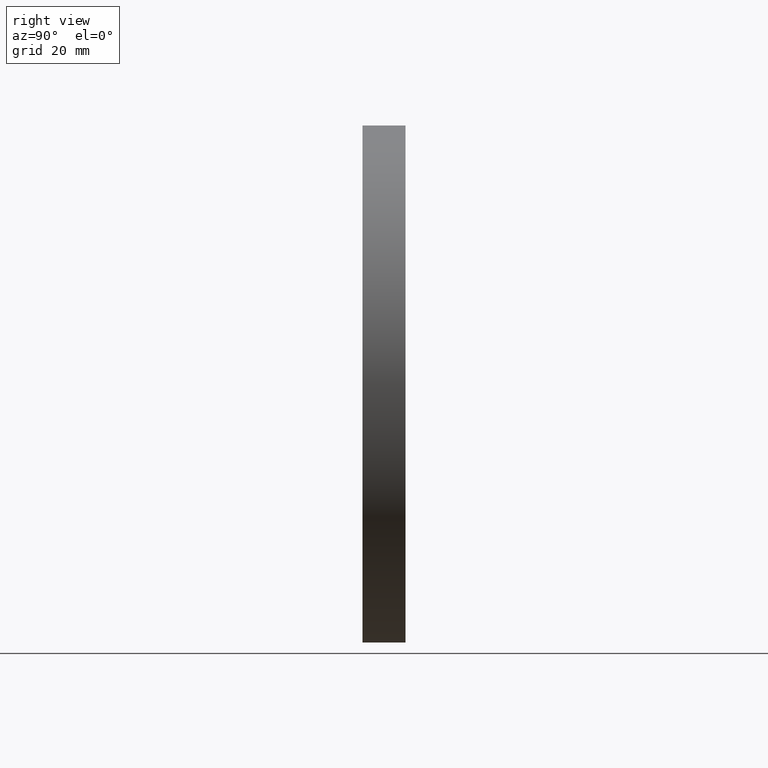
[diagram: clean part render]
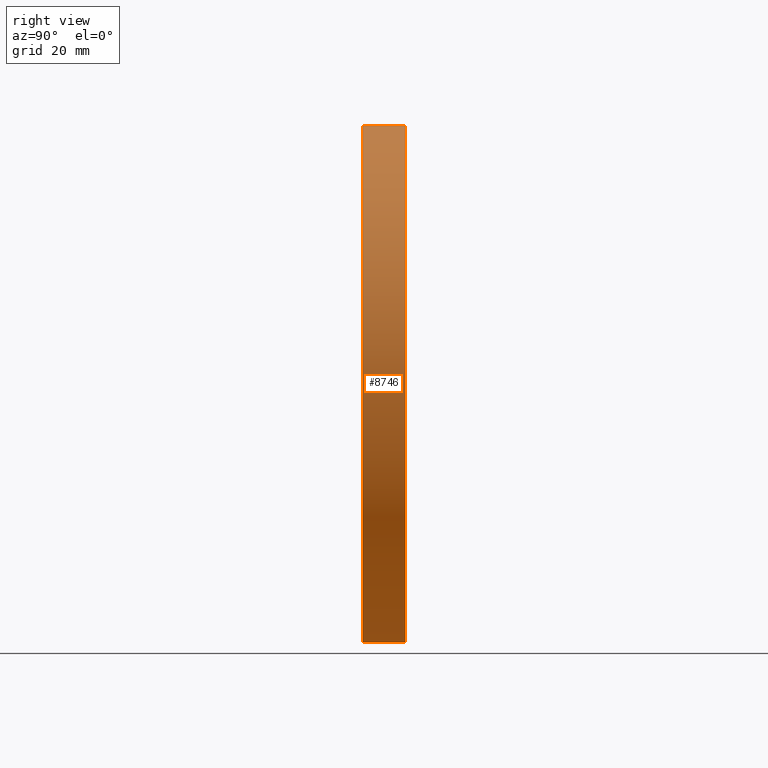
[diagram: same view with one face highlighted and labeled with its STEP entity id]
A machine part, right view. The second image highlights one B-rep face of the part: STEP entity #8746.
In plain terms, the highlighted cylindrical surface (partial cylindrical patch) has radius 60 mm, axis along (-0, -1, -0).
Its self-contained STEP definition (entity closure, byte-faithful):
#133 = ORIENTED_EDGE ( 'NONE', *, *, #7984, .T. ) ;
#364 = CARTESIAN_POINT ( 'NONE',  ( 0.000000000000000000, 10.00000000000000000, 0.000000000000000000 ) ) ;
#401 = AXIS2_PLACEMENT_3D ( 'NONE', #2669, #10575, #10439 ) ;
#507 = DIRECTION ( 'NONE',  ( -0.000000000000000000, -1.000000000000000000, -0.000000000000000000 ) ) ;
#1456 = AXIS2_PLACEMENT_3D ( 'NONE', #14170, #507, #6432 ) ;
#1467 = DIRECTION ( 'NONE',  ( 0.000000000000000000, 1.000000000000000000, 0.000000000000000000 ) ) ;
#1479 = EDGE_CURVE ( 'NONE', #6703, #7151, #12245, .T. ) ;
#2669 = CARTESIAN_POINT ( 'NONE',  ( 0.000000000000000000, 0.000000000000000000, 0.000000000000000000 ) ) ;
#3090 = ORIENTED_EDGE ( 'NONE', *, *, #5262, .T. ) ;
#4268 = DIRECTION ( 'NONE',  ( -0.000000000000000000, -1.000000000000000000, -0.000000000000000000 ) ) ;
#5262 = EDGE_CURVE ( 'NONE', #7486, #7417, #5802, .T. ) ;
#5407 = VECTOR ( 'NONE', #9180, 1000.000000000000000 ) ;
#5664 = CARTESIAN_POINT ( 'NONE',  ( 7.347880794884118356E-15, 10.00000000000000000, 60.00000000000000000 ) ) ;
#5802 = CIRCLE ( 'NONE', #401, 60.00000000000000000 ) ;
#6432 = DIRECTION ( 'NONE',  ( 0.000000000000000000, 0.000000000000000000, -1.000000000000000000 ) ) ;
#6470 = EDGE_CURVE ( 'NONE', #7151, #7417, #6477, .T. ) ;
#6477 = LINE ( 'NONE', #14412, #8592 ) ;
#6703 = VERTEX_POINT ( 'NONE', #11752 ) ;
#7103 = CARTESIAN_POINT ( 'NONE',  ( 0.000000000000000000, 10.00000000000000000, -60.00000000000000000 ) ) ;
#7146 = LINE ( 'NONE', #5664, #5407 ) ;
#7151 = VERTEX_POINT ( 'NONE', #7103 ) ;
#7241 = AXIS2_PLACEMENT_3D ( 'NONE', #364, #1467, #8302 ) ;
#7417 = VERTEX_POINT ( 'NONE', #10836 ) ;
#7486 = VERTEX_POINT ( 'NONE', #11035 ) ;
#7984 = EDGE_CURVE ( 'NONE', #6703, #7486, #7146, .T. ) ;
#8302 = DIRECTION ( 'NONE',  ( 0.000000000000000000, 0.000000000000000000, 1.000000000000000000 ) ) ;
#8592 = VECTOR ( 'NONE', #4268, 1000.000000000000000 ) ;
#8746 = ADVANCED_FACE ( 'NONE', ( #8896 ), #10313, .T. ) ;
#8896 = FACE_OUTER_BOUND ( 'NONE', #13917, .T. ) ;
#9180 = DIRECTION ( 'NONE',  ( -0.000000000000000000, -1.000000000000000000, -0.000000000000000000 ) ) ;
#10313 = CYLINDRICAL_SURFACE ( 'NONE', #1456, 60.00000000000000000 ) ;
#10416 = ORIENTED_EDGE ( 'NONE', *, *, #1479, .F. ) ;
#10439 = DIRECTION ( 'NONE',  ( 0.000000000000000000, 0.000000000000000000, 1.000000000000000000 ) ) ;
#10575 = DIRECTION ( 'NONE',  ( 0.000000000000000000, 1.000000000000000000, 0.000000000000000000 ) ) ;
#10836 = CARTESIAN_POINT ( 'NONE',  ( 0.000000000000000000, 0.000000000000000000, -60.00000000000000000 ) ) ;
#11035 = CARTESIAN_POINT ( 'NONE',  ( 7.347880794884118356E-15, 0.000000000000000000, 60.00000000000000000 ) ) ;
#11143 = ORIENTED_EDGE ( 'NONE', *, *, #6470, .F. ) ;
#11752 = CARTESIAN_POINT ( 'NONE',  ( 7.347880794884118356E-15, 10.00000000000000000, 60.00000000000000000 ) ) ;
#12245 = CIRCLE ( 'NONE', #7241, 60.00000000000000000 ) ;
#13917 = EDGE_LOOP ( 'NONE', ( #10416, #133, #3090, #11143 ) ) ;
#14170 = CARTESIAN_POINT ( 'NONE',  ( 0.000000000000000000, 10.00000000000000000, 0.000000000000000000 ) ) ;
#14412 = CARTESIAN_POINT ( 'NONE',  ( 0.000000000000000000, 10.00000000000000000, -60.00000000000000000 ) ) ;